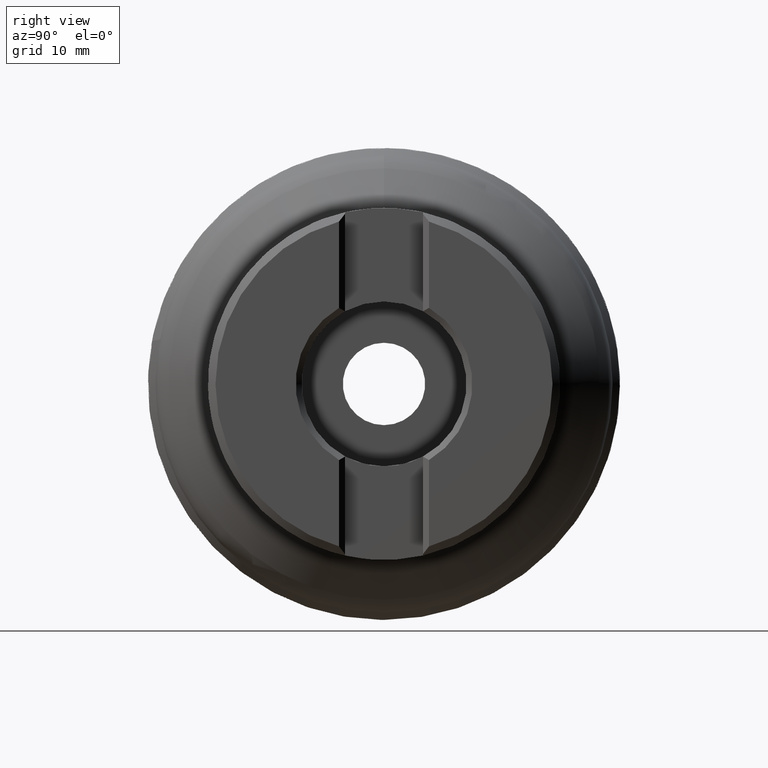
[diagram: clean part render]
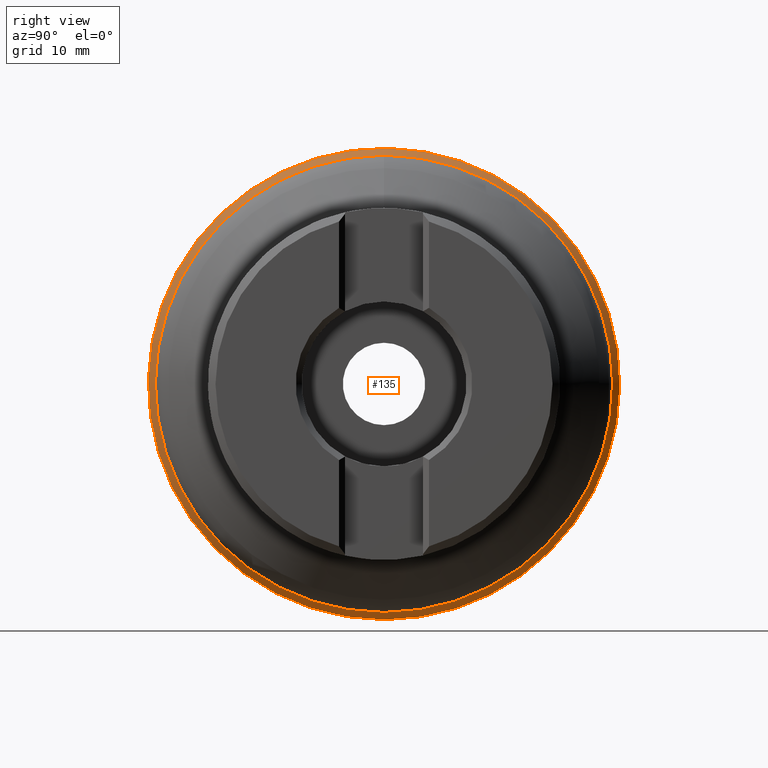
[diagram: same view with one face highlighted and labeled with its STEP entity id]
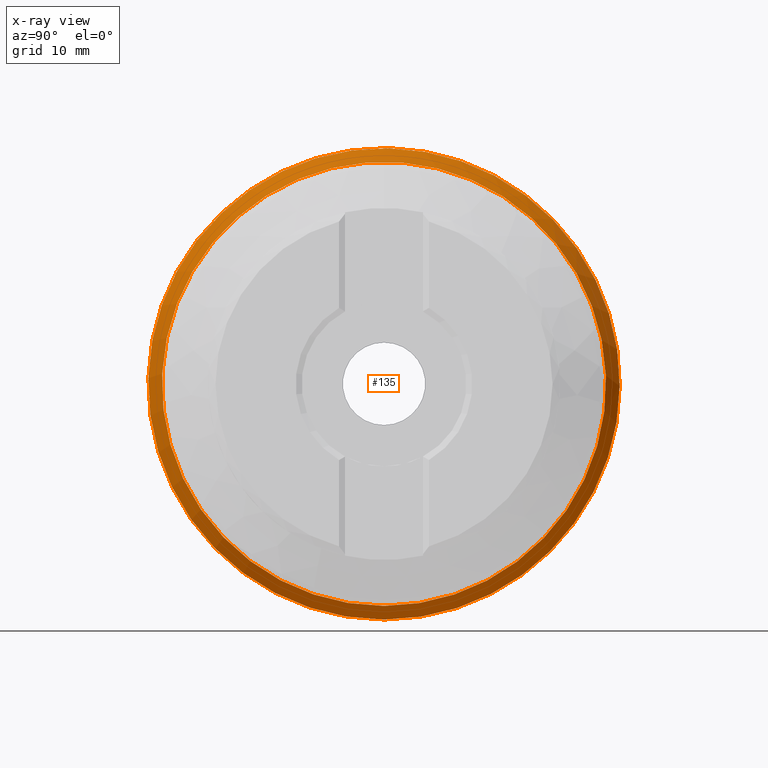
[diagram: x-ray of the same camera — body ghosted, the highlighted face saturated]
A machine part, right view. The second image highlights one B-rep face of the part: STEP entity #135.
The next image is the same camera in x-ray: the body ghosted, the highlighted face saturated — about 0% of this face is hidden behind the body in this view.
In plain terms, the highlighted face is a SurfaceOfRevolution surface.
Its self-contained STEP definition (entity closure, byte-faithful):
#135=ADVANCED_FACE('',(#307,#308),#193,.F.);
#193=SURFACE_OF_REVOLUTION('',#222,#213);
#213=AXIS1_PLACEMENT('',#1285,#1012);
#222=LINE('',#1284,#250);
#250=VECTOR('',#1011,4.12818988035367);
#307=FACE_BOUND('',#391,.T.);
#308=FACE_BOUND('',#392,.T.);
#391=EDGE_LOOP('',(#491));
#392=EDGE_LOOP('',(#492));
#491=ORIENTED_EDGE('',*,*,#714,.T.);
#492=ORIENTED_EDGE('',*,*,#713,.F.);
#643=VERTEX_POINT('',#1279);
#644=VERTEX_POINT('',#1283);
#713=EDGE_CURVE('',#643,#643,#801,.T.);
#714=EDGE_CURVE('',#644,#644,#802,.T.);
#801=CIRCLE('',#861,29.6379312073546);
#802=CIRCLE('',#862,31.459326904057);
#861=AXIS2_PLACEMENT_3D('',#1278,#1005,#1006);
#862=AXIS2_PLACEMENT_3D('',#1282,#1009,#1010);
#1005=DIRECTION('',(1.,0.,0.));
#1006=DIRECTION('',(0.,0.,-1.));
#1009=DIRECTION('',(1.,0.,0.));
#1010=DIRECTION('',(0.,0.,-1.));
#1011=DIRECTION('',(-0.878841539752964,-0.468086890464312,-0.0923699679554445));
#1012=DIRECTION('',(1.,0.,0.));
#1278=CARTESIAN_POINT('',(11.8818012288158,0.,0.));
#1279=CARTESIAN_POINT('',(11.8818012288158,0.,-29.6379312073546));
#1282=CARTESIAN_POINT('',(8.25377647797317,0.,0.));
#1283=CARTESIAN_POINT('',(8.25377647797317,0.,-31.459326904057));
#1284=CARTESIAN_POINT('',(11.8818012288158,-28.9987851328654,6.12188100748365));
#1285=CARTESIAN_POINT('',(0.,0.,0.));